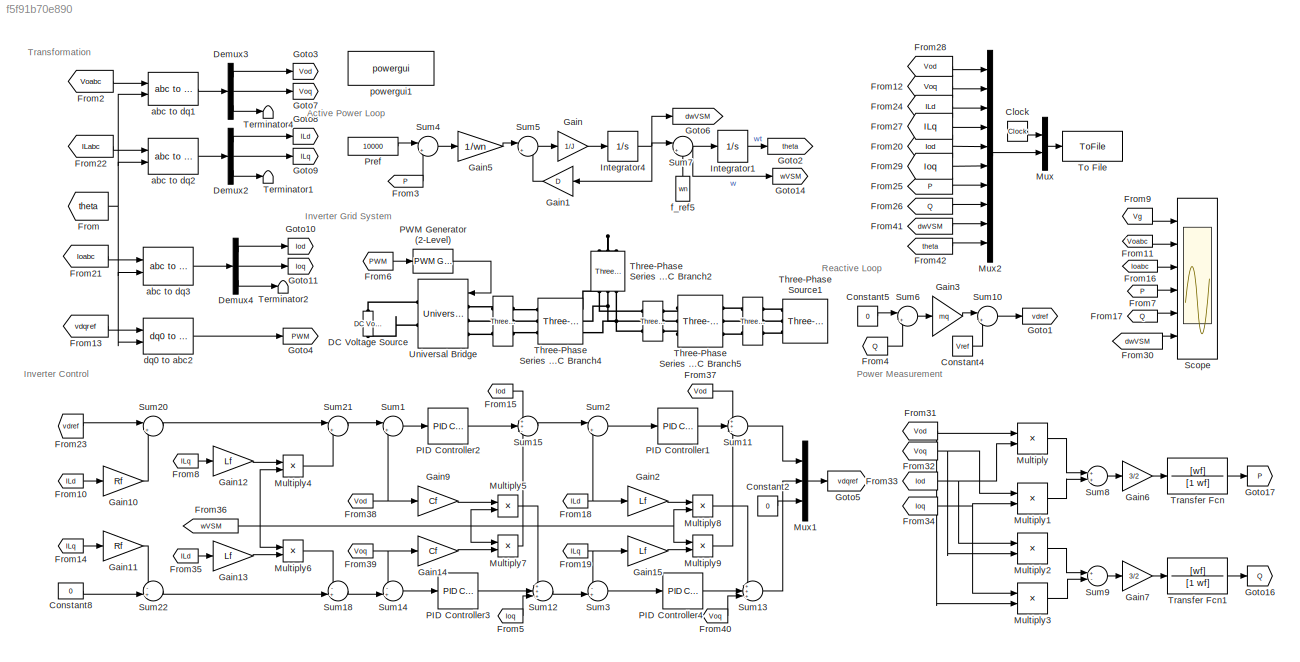
MODEL slx_f5f91b70e890
KIND model
CONFIG AbsTol = auto
CONFIG EnableMultiTasking = off
CONFIG FixedStep = auto
CONFIG InitFcn = clear all;\nTs = 0.5e-6;\nVdc = 1200;\nfc = 10e3;\nRf = 0.07;\nLf = 5.2e-3;\nCf = 100e-6;\nLc = 1.5e-4;\nRc = 0.05;\nVref = sqrt(2/3)*400;\n\nKpv = 3;\nKiv = 400;\nKpc = 5;\nKic = 10;\n\n\nJ=0.05;\nD=10;\n%D = 1000;\nwn=2*pi*50;\nwf = 10*pi;\nmq = 1e-5;\n\n\n\n\n
CONFIG MaxStep = auto
CONFIG MinStep = auto
CONFIG RelTol = 1e-3
CONFIG SampleTimeConstraint = Unconstrained
CONFIG Solver = ode45
CONFIG SolverName = ode45
CONFIG StartTime = 0.0
CONFIG StopTime = 0.5
BLOCK [Reference]     REF=powerlib/Measurements/Three-Phase
V-I Measurement
  Ports = [0, 0, 0, 0, 0, 3, 3]
  SourceBlock = powerlib/Measurements/Three-Phase\nV-I Measurement
  SourceProductBaseCode = PS
  SourceProductName = Simscape Power Systems
  SourceType = Three-Phase VI Measurement
BLOCK [Reference]        REF=powerlib/Measurements/Three-Phase
V-I Measurement
  Ports = [0, 0, 0, 0, 0, 3, 3]
  SourceBlock = powerlib/Measurements/Three-Phase\nV-I Measurement
  SourceProductBaseCode = PS
  SourceProductName = Simscape Power Systems
  SourceType = Three-Phase VI Measurement
BLOCK [Reference]            REF=powerlib/Measurements/Three-Phase
V-I Measurement
  Ports = [0, 0, 0, 0, 0, 3, 3]
  SourceBlock = powerlib/Measurements/Three-Phase\nV-I Measurement
  SourceProductBaseCode = PS
  SourceProductName = Simscape Power Systems
  SourceType = Three-Phase VI Measurement
BLOCK [Clock] Clock
BLOCK [Constant] Constant2
  Value = 0
BLOCK [Constant] Constant4
  Value = Vref
BLOCK [Constant] Constant5
  Value = 0
BLOCK [Constant] Constant8
  Value = 0
BLOCK [Reference] DC Voltage Source  REF=powerlib/Electrical
Sources/DC Voltage Source
  Ports = [0, 0, 0, 0, 0, 1, 1]
  SourceBlock = powerlib/Electrical\nSources/DC Voltage Source
  SourceProductBaseCode = PS
  SourceProductName = Simscape Power Systems
  SourceType = DC Voltage Source
BLOCK [Demux] Demux2
  Outputs = 3
  Ports = [1, 3]
BLOCK [Demux] Demux3
  Outputs = 3
  Ports = [1, 3]
BLOCK [Demux] Demux4
  Outputs = 3
  Ports = [1, 3]
BLOCK [From] From
  GotoTag = theta
  TagVisibility = global
BLOCK [From] From10
  GotoTag = ILd
BLOCK [From] From11
  GotoTag = Voabc
  TagVisibility = global
BLOCK [From] From12
  GotoTag = Voq
BLOCK [From] From13
  GotoTag = vdqref
BLOCK [From] From14
  GotoTag = ILq
BLOCK [From] From15
  GotoTag = Iod
BLOCK [From] From16
  GotoTag = Ioabc
  TagVisibility = global
BLOCK [From] From17
  GotoTag = Q
  TagVisibility = global
BLOCK [From] From18
  GotoTag = ILd
BLOCK [From] From19
  GotoTag = ILq
BLOCK [From] From2
  GotoTag = Voabc
  TagVisibility = global
BLOCK [From] From20
  GotoTag = Iod
BLOCK [From] From21
  GotoTag = Ioabc
  TagVisibility = global
BLOCK [From] From22
  GotoTag = ILabc
  TagVisibility = global
BLOCK [From] From23
  GotoTag = vdref
  TagVisibility = global
BLOCK [From] From24
  GotoTag = ILd
BLOCK [From] From25
  GotoTag = P
  TagVisibility = global
BLOCK [From] From26
  GotoTag = Q
  TagVisibility = global
BLOCK [From] From27
  GotoTag = ILq
BLOCK [From] From28
  GotoTag = Vod
BLOCK [From] From29
  GotoTag = Ioq
BLOCK [From] From3
  GotoTag = P
  TagVisibility = global
BLOCK [From] From30
  GotoTag = dwVSM
  TagVisibility = global
BLOCK [From] From31
  GotoTag = Vod
BLOCK [From] From32
  GotoTag = Voq
BLOCK [From] From33
  GotoTag = Iod
BLOCK [From] From34
  GotoTag = Ioq
BLOCK [From] From35
  GotoTag = ILd
BLOCK [From] From36
  GotoTag = wVSM
  TagVisibility = global
BLOCK [From] From37
  GotoTag = Vod
BLOCK [From] From38
  GotoTag = Vod
BLOCK [From] From39
  GotoTag = Voq
BLOCK [From] From4
  GotoTag = Q
  TagVisibility = global
BLOCK [From] From40
  GotoTag = Voq
BLOCK [From] From41
  GotoTag = dwVSM
  TagVisibility = global
BLOCK [From] From42
  GotoTag = theta
  TagVisibility = global
BLOCK [From] From5
  GotoTag = Ioq
BLOCK [From] From6
  GotoTag = PWM
BLOCK [From] From7
  GotoTag = P
  TagVisibility = global
BLOCK [From] From8
  GotoTag = ILq
BLOCK [From] From9
  GotoTag = Vg
  TagVisibility = global
BLOCK [Gain] Gain
  Gain = 1/J
  OutDataTypeStr = Inherit: Inherit via internal rule
  ParamDataTypeStr = Inherit: Inherit via internal rule
  SaturateOnIntegerOverflow = off
BLOCK [Gain] Gain1
  Gain = D
  OutDataTypeStr = Inherit: Inherit via internal rule
  ParamDataTypeStr = Inherit: Inherit via internal rule
  SaturateOnIntegerOverflow = off
BLOCK [Gain] Gain10
  Gain = Rf
  OutDataTypeStr = Inherit: Inherit via internal rule
  ParamDataTypeStr = Inherit: Inherit via internal rule
  SaturateOnIntegerOverflow = off
BLOCK [Gain] Gain11
  Gain = Rf
  OutDataTypeStr = Inherit: Inherit via internal rule
  ParamDataTypeStr = Inherit: Inherit via internal rule
  SaturateOnIntegerOverflow = off
BLOCK [Gain] Gain12
  Gain = Lf
  OutDataTypeStr = Inherit: Inherit via internal rule
  ParamDataTypeStr = Inherit: Inherit via internal rule
  SaturateOnIntegerOverflow = off
BLOCK [Gain] Gain13
  Gain = Lf
  OutDataTypeStr = Inherit: Inherit via internal rule
  ParamDataTypeStr = Inherit: Inherit via internal rule
  SaturateOnIntegerOverflow = off
BLOCK [Gain] Gain14
  Gain = Cf
  OutDataTypeStr = Inherit: Inherit via internal rule
  ParamDataTypeStr = Inherit: Inherit via internal rule
  SaturateOnIntegerOverflow = off
BLOCK [Gain] Gain15
  Gain = Lf
  OutDataTypeStr = Inherit: Inherit via internal rule
  ParamDataTypeStr = Inherit: Inherit via internal rule
  SaturateOnIntegerOverflow = off
BLOCK [Gain] Gain2
  Gain = Lf
  OutDataTypeStr = Inherit: Inherit via internal rule
  ParamDataTypeStr = Inherit: Inherit via internal rule
  SaturateOnIntegerOverflow = off
BLOCK [Gain] Gain3
  Gain = mq
  OutDataTypeStr = Inherit: Inherit via internal rule
  ParamDataTypeStr = Inherit: Inherit via internal rule
  SaturateOnIntegerOverflow = off
BLOCK [Gain] Gain5
  Gain = 1/wn
  OutDataTypeStr = Inherit: Inherit via internal rule
  ParamDataTypeStr = Inherit: Inherit via internal rule
  SaturateOnIntegerOverflow = off
BLOCK [Gain] Gain6
  Gain = 3/2
  OutDataTypeStr = Inherit: Inherit via internal rule
  ParamDataTypeStr = Inherit: Inherit via internal rule
  SaturateOnIntegerOverflow = off
BLOCK [Gain] Gain7
  Gain = 3/2
  OutDataTypeStr = Inherit: Inherit via internal rule
  ParamDataTypeStr = Inherit: Inherit via internal rule
  SaturateOnIntegerOverflow = off
BLOCK [Gain] Gain9
  Gain = Cf
  OutDataTypeStr = Inherit: Inherit via internal rule
  ParamDataTypeStr = Inherit: Inherit via internal rule
  SaturateOnIntegerOverflow = off
BLOCK [Goto] Goto1
  GotoTag = vdref
  TagVisibility = global
BLOCK [Goto] Goto10
  GotoTag = Iod
BLOCK [Goto] Goto11
  GotoTag = Ioq
BLOCK [Goto] Goto14
  GotoTag = wVSM
  TagVisibility = global
BLOCK [Goto] Goto16
  GotoTag = Q
  TagVisibility = global
BLOCK [Goto] Goto17
  GotoTag = P
  TagVisibility = global
BLOCK [Goto] Goto2
  GotoTag = theta
  TagVisibility = global
BLOCK [Goto] Goto3
  GotoTag = Vod
BLOCK [Goto] Goto4
  GotoTag = PWM
BLOCK [Goto] Goto5
  GotoTag = vdqref
BLOCK [Goto] Goto6
  GotoTag = dwVSM
  TagVisibility = global
BLOCK [Goto] Goto7
  GotoTag = Voq
BLOCK [Goto] Goto8
  GotoTag = ILd
BLOCK [Goto] Goto9
  GotoTag = ILq
BLOCK [Integrator] Integrator1
  Ports = [1, 1]
BLOCK [Integrator] Integrator4
  Ports = [1, 1]
BLOCK [Product] Multiply
  InputSameDT = off
  OutDataTypeStr = Inherit: Inherit via internal rule
  Ports = [2, 1]
  RndMeth = Floor
  SaturateOnIntegerOverflow = off
BLOCK [Product] Multiply1
  InputSameDT = off
  OutDataTypeStr = Inherit: Inherit via internal rule
  Ports = [2, 1]
  RndMeth = Floor
  SaturateOnIntegerOverflow = off
BLOCK [Product] Multiply2
  InputSameDT = off
  OutDataTypeStr = Inherit: Inherit via internal rule
  Ports = [2, 1]
  RndMeth = Floor
  SaturateOnIntegerOverflow = off
BLOCK [Product] Multiply3
  InputSameDT = off
  OutDataTypeStr = Inherit: Inherit via internal rule
  Ports = [2, 1]
  RndMeth = Floor
  SaturateOnIntegerOverflow = off
BLOCK [Product] Multiply4
  InputSameDT = off
  OutDataTypeStr = Inherit: Inherit via internal rule
  Ports = [2, 1]
  RndMeth = Floor
  SaturateOnIntegerOverflow = off
BLOCK [Product] Multiply5
  InputSameDT = off
  OutDataTypeStr = Inherit: Inherit via internal rule
  Ports = [2, 1]
  RndMeth = Floor
  SaturateOnIntegerOverflow = off
BLOCK [Product] Multiply6
  InputSameDT = off
  OutDataTypeStr = Inherit: Inherit via internal rule
  Ports = [2, 1]
  RndMeth = Floor
  SaturateOnIntegerOverflow = off
BLOCK [Product] Multiply7
  InputSameDT = off
  OutDataTypeStr = Inherit: Inherit via internal rule
  Ports = [2, 1]
  RndMeth = Floor
  SaturateOnIntegerOverflow = off
BLOCK [Product] Multiply8
  InputSameDT = off
  OutDataTypeStr = Inherit: Inherit via internal rule
  Ports = [2, 1]
  RndMeth = Floor
  SaturateOnIntegerOverflow = off
BLOCK [Product] Multiply9
  InputSameDT = off
  OutDataTypeStr = Inherit: Inherit via internal rule
  Ports = [2, 1]
  RndMeth = Floor
  SaturateOnIntegerOverflow = off
BLOCK [Mux] Mux
  DisplayOption = bar
  Inputs = 2
  Ports = [2, 1]
BLOCK [Mux] Mux1
  DisplayOption = bar
  Inputs = 3
  Ports = [3, 1]
BLOCK [Mux] Mux2
  DisplayOption = bar
  Inputs = 10
  Ports = [10, 1]
BLOCK [Reference] PID Controller1  REF=simulink/Continuous/PID Controller
  Ports = [1, 1]
  SourceBlock = simulink/Continuous/PID Controller
  SourceProductBaseCode = SL
  SourceProductName = Simulink
  SourceType = PID 1dof
BLOCK [Reference] PID Controller2  REF=simulink/Continuous/PID Controller
  Ports = [1, 1]
  SourceBlock = simulink/Continuous/PID Controller
  SourceProductBaseCode = SL
  SourceProductName = Simulink
  SourceType = PID 1dof
BLOCK [Reference] PID Controller3  REF=simulink/Continuous/PID Controller
  Ports = [1, 1]
  SourceBlock = simulink/Continuous/PID Controller
  SourceProductBaseCode = SL
  SourceProductName = Simulink
  SourceType = PID 1dof
BLOCK [Reference] PID Controller4  REF=simulink/Continuous/PID Controller
  Ports = [1, 1]
  SourceBlock = simulink/Continuous/PID Controller
  SourceProductBaseCode = SL
  SourceProductName = Simulink
  SourceType = PID 1dof
BLOCK [Reference] PWM Generator (2-Level)  REF=powerlib_meascontrol/Pulse & Signal
Generators/PWM Generator
(2-Level)
  Ports = [1, 1]
  SourceBlock = powerlib_meascontrol/Pulse & Signal\nGenerators/PWM Generator\n(2-Level)
  SourceProductBaseCode = PS
  SourceProductName = Simscape Power Systems
  SourceType = PWM Generator (2-Level)
BLOCK [Constant] Pref
  Value = 10000
BLOCK [Scope] Scope
  Floating = off
  NumInputPorts = 6
  Ports = [6]
  ScopeSpecificationString = Simulink.scopes.TimeScopeBlockCfg('CurrentConfiguration', extmgr.ConfigurationSet(extmgr.Configuration('Core','General UI',true,'FigureColor',[1 1 1]),extmgr.Configuration('Core','Source UI',true),extmgr.Configuration('Sources','WiredSimulink',true,'DataLoggingVariableName','ScopeData1'),extmgr.Configuration('Visuals','Time Domain',true,'SerializedDisplays',{struct('MinYLimReal','-408.24829','MaxY...<+6613ch>
BLOCK [Sum] Sum1
  IconShape = round
  InputSameDT = off
  Inputs = |+-
  OutDataTypeStr = Inherit: Inherit via internal rule
  Ports = [2, 1]
  SaturateOnIntegerOverflow = off
BLOCK [Sum] Sum10
  IconShape = round
  InputSameDT = off
  Inputs = |++
  OutDataTypeStr = Inherit: Inherit via internal rule
  Ports = [2, 1]
  SaturateOnIntegerOverflow = off
BLOCK [Sum] Sum11
  IconShape = round
  InputSameDT = off
  Inputs = ++-
  OutDataTypeStr = Inherit: Inherit via internal rule
  Ports = [3, 1]
  SaturateOnIntegerOverflow = off
BLOCK [Sum] Sum12
  IconShape = round
  InputSameDT = off
  Inputs = +++
  OutDataTypeStr = Inherit: Inherit via internal rule
  Ports = [3, 1]
  SaturateOnIntegerOverflow = off
BLOCK [Sum] Sum13
  IconShape = round
  InputSameDT = off
  Inputs = +++
  OutDataTypeStr = Inherit: Inherit via internal rule
  Ports = [3, 1]
  SaturateOnIntegerOverflow = off
BLOCK [Sum] Sum14
  IconShape = round
  InputSameDT = off
  Inputs = -+|
  OutDataTypeStr = Inherit: Inherit via internal rule
  Ports = [2, 1]
  SaturateOnIntegerOverflow = off
BLOCK [Sum] Sum15
  IconShape = round
  InputSameDT = off
  Inputs = ++-
  OutDataTypeStr = Inherit: Inherit via internal rule
  Ports = [3, 1]
  SaturateOnIntegerOverflow = off
BLOCK [Sum] Sum18
  IconShape = round
  InputSameDT = off
  Inputs = -+|
  OutDataTypeStr = Inherit: Inherit via internal rule
  Ports = [2, 1]
  SaturateOnIntegerOverflow = off
BLOCK [Sum] Sum2
  IconShape = round
  InputSameDT = off
  Inputs = |+-
  OutDataTypeStr = Inherit: Inherit via internal rule
  Ports = [2, 1]
  SaturateOnIntegerOverflow = off
BLOCK [Sum] Sum20
  IconShape = round
  InputSameDT = off
  Inputs = |+-
  OutDataTypeStr = Inherit: Inherit via internal rule
  Ports = [2, 1]
  SaturateOnIntegerOverflow = off
BLOCK [Sum] Sum21
  IconShape = round
  InputSameDT = off
  Inputs = |++
  OutDataTypeStr = Inherit: Inherit via internal rule
  Ports = [2, 1]
  SaturateOnIntegerOverflow = off
BLOCK [Sum] Sum22
  IconShape = round
  InputSameDT = off
  Inputs = -+|
  OutDataTypeStr = Inherit: Inherit via internal rule
  Ports = [2, 1]
  SaturateOnIntegerOverflow = off
BLOCK [Sum] Sum3
  IconShape = round
  InputSameDT = off
  Inputs = -+|
  OutDataTypeStr = Inherit: Inherit via internal rule
  Ports = [2, 1]
  SaturateOnIntegerOverflow = off
BLOCK [Sum] Sum4
  IconShape = round
  InputSameDT = off
  Inputs = |+-
  OutDataTypeStr = Inherit: Inherit via internal rule
  Ports = [2, 1]
  SaturateOnIntegerOverflow = off
BLOCK [Sum] Sum5
  IconShape = round
  InputSameDT = off
  Inputs = |+-
  OutDataTypeStr = Inherit: Inherit via internal rule
  Ports = [2, 1]
  SaturateOnIntegerOverflow = off
BLOCK [Sum] Sum6
  IconShape = round
  InputSameDT = off
  Inputs = |+-
  OutDataTypeStr = Inherit: Inherit via internal rule
  Ports = [2, 1]
  SaturateOnIntegerOverflow = off
BLOCK [Sum] Sum7
  IconShape = round
  InputSameDT = off
  Inputs = |++
  OutDataTypeStr = Inherit: Inherit via internal rule
  Ports = [2, 1]
  SaturateOnIntegerOverflow = off
BLOCK [Sum] Sum8
  InputSameDT = off
  OutDataTypeStr = Inherit: Inherit via internal rule
  Ports = [2, 1]
  SaturateOnIntegerOverflow = off
BLOCK [Sum] Sum9
  InputSameDT = off
  Inputs = +-
  OutDataTypeStr = Inherit: Inherit via internal rule
  Ports = [2, 1]
  SaturateOnIntegerOverflow = off
BLOCK [Terminator] Terminator1
BLOCK [Terminator] Terminator2
BLOCK [Terminator] Terminator4
BLOCK [Reference] Three-Phase Series RLC Branch2  REF=powerlib/Elements/Three-Phase
Series RLC Branch
  AttributesFormatString = \n
  Ports = [0, 0, 0, 0, 0, 3, 3]
  SourceBlock = powerlib/Elements/Three-Phase\nSeries RLC Branch
  SourceProductBaseCode = PS
  SourceProductName = Simscape Power Systems
  SourceType = Three-Phase Series RLC Branch
BLOCK [Reference] Three-Phase Series RLC Branch4  REF=powerlib/Elements/Three-Phase
Series RLC Branch
  AttributesFormatString = \n
  Ports = [0, 0, 0, 0, 0, 3, 3]
  SourceBlock = powerlib/Elements/Three-Phase\nSeries RLC Branch
  SourceProductBaseCode = PS
  SourceProductName = Simscape Power Systems
  SourceType = Three-Phase Series RLC Branch
BLOCK [Reference] Three-Phase Series RLC Branch5  REF=powerlib/Elements/Three-Phase
Series RLC Branch
  AttributesFormatString = \n
  Ports = [0, 0, 0, 0, 0, 3, 3]
  SourceBlock = powerlib/Elements/Three-Phase\nSeries RLC Branch
  SourceProductBaseCode = PS
  SourceProductName = Simscape Power Systems
  SourceType = Three-Phase Series RLC Branch
BLOCK [Reference] Three-Phase Source1  REF=powerlib/Electrical
Sources/Three-Phase Source
  Ports = [0, 0, 0, 0, 0, 0, 3]
  SourceBlock = powerlib/Electrical\nSources/Three-Phase Source
  SourceProductBaseCode = PS
  SourceProductName = Simscape Power Systems
  SourceType = Three-Phase Source
BLOCK [ToFile] To File
  Filename = data_vsm_ddm_10.mat
  Ports = [1]
  SampleTime = 0.0001
BLOCK [TransferFcn] Transfer Fcn
  Denominator = [1 wf]
  Numerator = [wf]
BLOCK [TransferFcn] Transfer Fcn1
  Denominator = [1 wf]
  Numerator = [wf]
BLOCK [Reference] Universal Bridge  REF=powerlib/Power
Electronics/Universal Bridge
  Ports = [1, 0, 0, 0, 0, 3, 2]
  SourceBlock = powerlib/Power\nElectronics/Universal Bridge
  SourceProductBaseCode = PS
  SourceProductName = Simscape Power Systems
  SourceType = Universal Bridge
BLOCK [Reference] abc to dq1  REF=powerlib_meascontrol/Transformations/abc to dq0
  Ports = [2, 1]
  SourceBlock = powerlib_meascontrol/Transformations/abc to dq0
  SourceProductBaseCode = PS
  SourceProductName = Simscape Power Systems
  SourceType = abc to dq0 Transformation
BLOCK [Reference] abc to dq2  REF=powerlib_meascontrol/Transformations/abc to dq0
  Ports = [2, 1]
  SourceBlock = powerlib_meascontrol/Transformations/abc to dq0
  SourceProductBaseCode = PS
  SourceProductName = Simscape Power Systems
  SourceType = abc to dq0 Transformation
BLOCK [Reference] abc to dq3  REF=powerlib_meascontrol/Transformations/abc to dq0
  Ports = [2, 1]
  SourceBlock = powerlib_meascontrol/Transformations/abc to dq0
  SourceProductBaseCode = PS
  SourceProductName = Simscape Power Systems
  SourceType = abc to dq0 Transformation
BLOCK [Reference] dq0 to abc2  REF=powerlib_meascontrol/Transformations/dq0 to abc
  Ports = [2, 1]
  SourceBlock = powerlib_meascontrol/Transformations/dq0 to abc
  SourceProductBaseCode = PS
  SourceProductName = Simscape Power Systems
  SourceType = dq0 to abc Transformation
BLOCK [Constant] f_ref5
  Value = wn
BLOCK [Reference] powergui1  REF=powerlib/powergui
  Ports = []
  Priority = 1
  SourceBlock = powerlib/powergui
  SourceProductBaseCode = PS
  SourceProductName = Simscape Power Systems
  SourceType = PSB option menu block
ANNOTATION (root): Active Power Loop
ANNOTATION (root): Inverter Control
ANNOTATION (root): Inverter Grid System
ANNOTATION (root): Power Measurement
ANNOTATION (root): Reactive Loop
ANNOTATION (root): Transformation
LINE Clock:1 -> Mux:1
LINE Constant2:1 -> Mux1:3
LINE Constant4:1 -> Sum10:2
LINE Constant5:1 -> Sum6:1
LINE Constant8:1 -> Sum22:2
LINE Demux2:1 -> Goto8:1
LINE Demux2:2 -> Goto9:1
LINE Demux2:3 -> Terminator1:1
LINE Demux3:1 -> Goto3:1
LINE Demux3:2 -> Goto7:1
LINE Demux3:3 -> Terminator4:1
LINE Demux4:1 -> Goto10:1
LINE Demux4:2 -> Goto11:1
LINE Demux4:3 -> Terminator2:1
LINE From10:1 -> Gain10:1
LINE From11:1 -> Scope:2
LINE From12:1 -> Mux2:2
LINE From13:1 -> dq0 to abc2:1
LINE From14:1 -> Gain11:1
LINE From15:1 -> Sum15:1
LINE From16:1 -> Scope:3
LINE From17:1 -> Scope:5
NET From18:1 -> Gain2:1, Sum2:2
NET From19:1 -> Gain15:1, Sum3:1
LINE From20:1 -> Mux2:5
LINE From21:1 -> abc to dq3:1
LINE From22:1 -> abc to dq2:1
LINE From23:1 -> Sum20:1
LINE From24:1 -> Mux2:3
LINE From25:1 -> Mux2:7
LINE From26:1 -> Mux2:8
LINE From27:1 -> Mux2:4
LINE From28:1 -> Mux2:1
LINE From29:1 -> Mux2:6
LINE From2:1 -> abc to dq1:1
LINE From30:1 -> Scope:6
NET From31:1 -> Multiply3:2, Multiply:1
NET From32:1 -> Multiply1:1, Multiply2:2
NET From33:1 -> Multiply2:1, Multiply:2
NET From34:1 -> Multiply1:2, Multiply3:1
LINE From35:1 -> Gain13:1
NET From36:1 -> Multiply4:2, Multiply5:2, Multiply6:1, Multiply7:1, Multiply8:2, Multiply9:1
LINE From37:1 -> Sum11:1
NET From38:1 -> Gain9:1, Sum1:2
NET From39:1 -> Gain14:1, Sum14:1
LINE From3:1 -> Sum4:2
LINE From40:1 -> Sum13:3
LINE From41:1 -> Mux2:9
LINE From42:1 -> Mux2:10
LINE From4:1 -> Sum6:2
LINE From5:1 -> Sum12:3
LINE From6:1 -> PWM Generator (2-Level):1
LINE From7:1 -> Scope:4
LINE From8:1 -> Gain12:1
LINE From9:1 -> Scope:1
NET From:1 -> abc to dq1:2, abc to dq2:2, abc to dq3:2, dq0 to abc2:2
LINE Gain10:1 -> Sum20:2
LINE Gain11:1 -> Sum22:1
LINE Gain12:1 -> Multiply4:1
LINE Gain13:1 -> Multiply6:2
LINE Gain14:1 -> Multiply7:2
LINE Gain15:1 -> Multiply9:2
LINE Gain1:1 -> Sum5:2
LINE Gain2:1 -> Multiply8:1
LINE Gain3:1 -> Sum10:1
LINE Gain5:1 -> Sum5:1
LINE Gain6:1 -> Transfer Fcn:1
LINE Gain7:1 -> Transfer Fcn1:1
LINE Gain9:1 -> Multiply5:1
LINE Gain:1 -> Integrator4:1
LINE Integrator1:1 -> Goto2:1
NET Integrator4:1 -> Gain1:1, Goto6:1, Sum7:1
LINE Multiply1:1 -> Sum8:2
LINE Multiply2:1 -> Sum9:1
LINE Multiply3:1 -> Sum9:2
LINE Multiply4:1 -> Sum21:2
LINE Multiply5:1 -> Sum12:1
LINE Multiply6:1 -> Sum18:1
LINE Multiply7:1 -> Sum15:3
LINE Multiply8:1 -> Sum13:1
LINE Multiply9:1 -> Sum11:3
LINE Multiply:1 -> Sum8:1
LINE Mux1:1 -> Goto5:1
LINE Mux2:1 -> Mux:2
LINE Mux:1 -> To File:1
LINE PID Controller1:1 -> Sum11:2
LINE PID Controller2:1 -> Sum15:2
LINE PID Controller3:1 -> Sum12:2
LINE PID Controller4:1 -> Sum13:2
LINE PWM Generator (2-Level):1 -> Universal Bridge:1
LINE Pref:1 -> Sum4:1
LINE Sum10:1 -> Goto1:1
LINE Sum11:1 -> Mux1:1
LINE Sum12:1 -> Sum3:2
LINE Sum13:1 -> Mux1:2
LINE Sum14:1 -> PID Controller3:1
LINE Sum15:1 -> Sum2:1
LINE Sum18:1 -> Sum14:2
LINE Sum1:1 -> PID Controller2:1
LINE Sum20:1 -> Sum21:1
LINE Sum21:1 -> Sum1:1
LINE Sum22:1 -> Sum18:2
LINE Sum2:1 -> PID Controller1:1
LINE Sum3:1 -> PID Controller4:1
LINE Sum4:1 -> Gain5:1
LINE Sum5:1 -> Gain:1
LINE Sum6:1 -> Gain3:1
NET Sum7:1 -> Goto14:1, Integrator1:1
LINE Sum8:1 -> Gain6:1
LINE Sum9:1 -> Gain7:1
LINE Transfer Fcn1:1 -> Goto16:1
LINE Transfer Fcn:1 -> Goto17:1
LINE abc to dq1:1 -> Demux3:1
LINE abc to dq2:1 -> Demux2:1
LINE abc to dq3:1 -> Demux4:1
LINE dq0 to abc2:1 -> Goto4:1
LINE f_ref5:1 -> Sum7:2
PLINE          :LConn1 -- Three-Phase Series RLC Branch5:RConn1
PLINE          :LConn2 -- Three-Phase Series RLC Branch5:RConn2
PLINE          :LConn3 -- Three-Phase Series RLC Branch5:RConn3
PLINE          :RConn1 -- Three-Phase Source1:RConn1
PLINE          :RConn2 -- Three-Phase Source1:RConn2
PLINE          :RConn3 -- Three-Phase Source1:RConn3
PNET net1:      :LConn1 -- Three-Phase Series RLC Branch2:LConn1 -- Three-Phase Series RLC Branch4:RConn1
PNET net2:      :LConn2 -- Three-Phase Series RLC Branch2:LConn2 -- Three-Phase Series RLC Branch4:RConn2
PNET net3:      :LConn3 -- Three-Phase Series RLC Branch2:LConn3 -- Three-Phase Series RLC Branch4:RConn3
PLINE      :RConn1 -- Three-Phase Series RLC Branch5:LConn1
PLINE      :RConn2 -- Three-Phase Series RLC Branch5:LConn2
PLINE      :RConn3 -- Three-Phase Series RLC Branch5:LConn3
PLINE   :LConn1 -- Universal Bridge:LConn1
PLINE   :LConn2 -- Universal Bridge:LConn2
PLINE   :LConn3 -- Universal Bridge:LConn3
PLINE   :RConn1 -- Three-Phase Series RLC Branch4:LConn1
PLINE   :RConn2 -- Three-Phase Series RLC Branch4:LConn2
PLINE   :RConn3 -- Three-Phase Series RLC Branch4:LConn3
PLINE DC Voltage Source:LConn1 -- Universal Bridge:RConn2
PLINE DC Voltage Source:RConn1 -- Universal Bridge:RConn1
PNET net4: Three-Phase Series RLC Branch2:RConn1 -- Three-Phase Series RLC Branch2:RConn2 -- Three-Phase Series RLC Branch2:RConn3
note: NET lines group one-source signal fan-out (src -> all destinations, sorted); 1:1 wires keep LINE; PNET lines group multi-terminal physical nets as a canonical sorted terminal list (undirected conserving connections); 2-terminal nets keep the pairwise PLINE form
